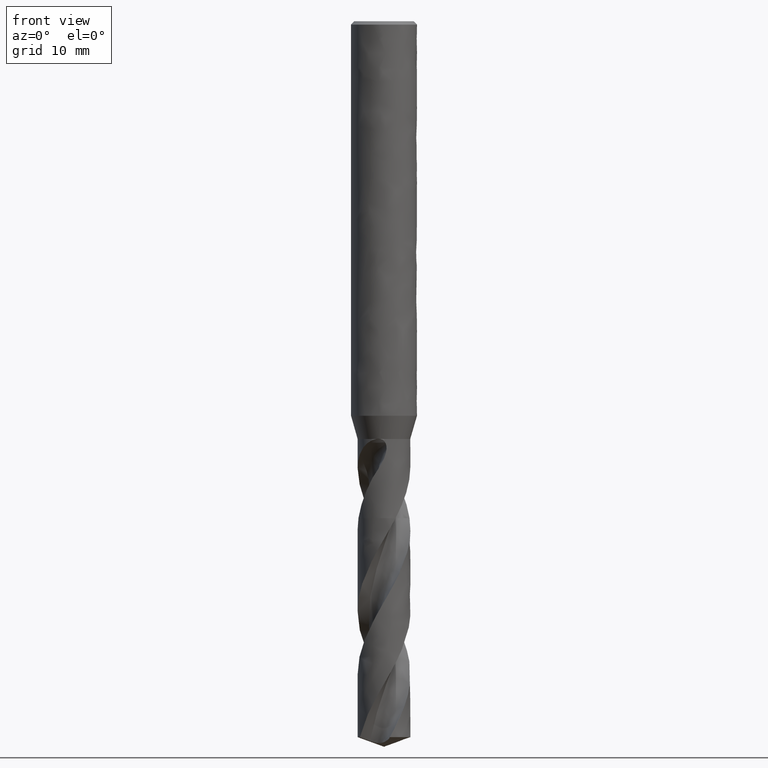
[diagram: clean part render]
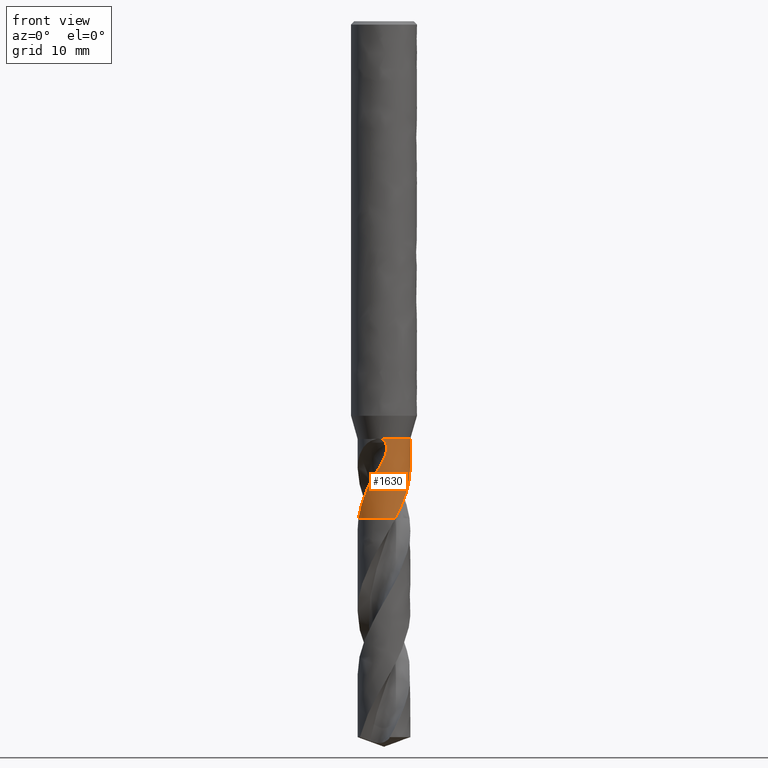
[diagram: same view with one face highlighted and labeled with its STEP entity id]
A machine part, front view. The second image highlights one B-rep face of the part: STEP entity #1630.
In plain terms, the highlighted face is a freeform B-spline surface patch.
Its self-contained STEP definition (entity closure, byte-faithful):
#189 = VERTEX_POINT('', #190);
#190 = CARTESIAN_POINT('', (-0.361819098276517, -2.3725696913099, -38.));
#203 = EDGE_CURVE('', #204, #189, #206, .T.);
#204 = VERTEX_POINT('', #205);
#205 = CARTESIAN_POINT('', (0.683818821939223, 2.30051990183994, -38.));
#206 = CIRCLE('', #207, 2.4);
#207 = AXIS2_PLACEMENT_3D('', #208, #209, #210);
#208 = CARTESIAN_POINT('', (1.42477179352876E-31, 2.32682891837997E-15, -38.));
#209 = DIRECTION('', (3.74939945665464E-33, 6.12323399573677E-17, -1.));
#210 = DIRECTION('', (-1., 6.12323399573677E-17, 0.));
#612 = VERTEX_POINT('', #613);
#613 = CARTESIAN_POINT('', (1.05004083517096, -2.15810431732886, -45.2));
#622 = VERTEX_POINT('', #623);
#623 = CARTESIAN_POINT('', (2.21043939012941, 0.934857049267073, -39.4110379832775));
#643 = EDGE_CURVE('', #622, #612, #644, .T.);
#644 = B_SPLINE_CURVE_WITH_KNOTS('', 3, (#645, #646, #647, #648, #649, #650, #651, #652, #653, #654, #655, #656, #657, #658, #659, #660, #661, #662, #663, #664, #665, #666, #667, #668, #669, #670, #671, #672, #673, #674, #675, #676, #677, #678, #679, #680, #681, #682, #683, #684, #685, #686, #687, #688, #689, #690, #691, #692, #693, #694, #695, #696, #697, #698, #699, #700, #701, #702, #703, #704, #705, #706, #707, #708, #709, #710, #711, #712, #713, #714, #715, #716, #717, #718, #719, #720, #721, #722, #723, #724, #725, #726, #727, #728, #729, #730, #731, #732, #733, #734, #735, #736, #737, #738, #739, #740, #741, #742, #743, #744, #745, #746, #747), .UNSPECIFIED., .F., .U., (4, 3, 3, 3, 3, 3, 3, 3, 3, 3, 3, 3, 3, 3, 3, 3, 3, 3, 3, 3, 3, 3, 3, 3, 3, 3, 3, 3, 3, 3, 3, 3, 3, 3, 4), (0., 0.196188848893899, 0.392404172464265, 0.588647711045399, 0.784928591714684, 0.981249295148756, 1.17761092496818, 1.37401911658387, 1.50511830685753, 1.56345266580327, 1.62184017376926, 1.81900205277714, 2.01619015199549, 2.1476214936762, 2.44362398514528, 2.64084218273653, 2.83807996489279, 3.03536503107888, 3.16683085867797, 3.29827151082379, 3.42966651761195, 3.56104697034798, 3.64863718683867, 3.73623770808357, 4.03197750756973, 4.22906356396195, 4.67242195934843, 4.96801131203175, 5.16505954708879, 5.3620951272825, 5.55913767560468, 5.7561707161978, 6.19932088821335, 6.64237188653488, 6.8524637557903), .UNSPECIFIED.);
#645 = CARTESIAN_POINT('', (2.21043939012941, 0.934857049267073, -39.4110379832775));
#646 = CARTESIAN_POINT('', (2.22687099684584, 0.896005044291993, -39.4610099537782));
#647 = CARTESIAN_POINT('', (2.24218241038625, 0.856945305760388, -39.5112016160299));
#648 = CARTESIAN_POINT('', (2.25638415075851, 0.817759478212151, -39.5615946246258));
#649 = CARTESIAN_POINT('', (2.27058780758262, 0.778568362737958, -39.6119944334992));
#650 = CARTESIAN_POINT('', (2.28368576280386, 0.739239221313795, -39.6626107507317));
#651 = CARTESIAN_POINT('', (2.29569232438249, 0.699854807636086, -39.7134294340291));
#652 = CARTESIAN_POINT('', (2.3077006124586, 0.660464730630784, -39.7642554248582));
#653 = CARTESIAN_POINT('', (2.31862019573842, 0.621009874094685, -39.8153000322074));
#654 = CARTESIAN_POINT('', (2.3284718204337, 0.581565973425345, -39.8665463265476));
#655 = CARTESIAN_POINT('', (2.33832531973969, 0.542114567196196, -39.9178023722594));
#656 = CARTESIAN_POINT('', (2.34711341685117, 0.50266237028228, -39.9692736035613));
#657 = CARTESIAN_POINT('', (2.35486091698371, 0.463281838261172, -40.0209440696272));
#658 = CARTESIAN_POINT('', (2.36260998898038, 0.42389331645696, -40.0726250189393));
#659 = CARTESIAN_POINT('', (2.36932005906851, 0.384565983662525, -40.1245188220013));
#660 = CARTESIAN_POINT('', (2.37501940777291, 0.34537343948547, -40.176613794828));
#661 = CARTESIAN_POINT('', (2.38071994460336, 0.306172724956854, -40.2287196277367));
#662 = CARTESIAN_POINT('', (2.38541064267189, 0.267098700881635, -40.281041123241));
#663 = CARTESIAN_POINT('', (2.38912481935493, 0.228216120250631, -40.3335631165186));
#664 = CARTESIAN_POINT('', (2.39283987675352, 0.189324319677833, -40.3860975639521));
#665 = CARTESIAN_POINT('', (2.39557888030163, 0.150614232789144, -40.4388448954101));
#666 = CARTESIAN_POINT('', (2.39737828093243, 0.112148910442572, -40.4917922570494));
#667 = CARTESIAN_POINT('', (2.39857935082537, 0.086473949679641, -40.5271337373661));
#668 = CARTESIAN_POINT('', (2.39936203510012, 0.0609047283117939, -40.5625689291013));
#669 = CARTESIAN_POINT('', (2.39973802084211, 0.0354602781265607, -40.5980950462483));
#670 = CARTESIAN_POINT('', (2.39990532078641, 0.024138425663673, -40.6139028728662));
#671 = CARTESIAN_POINT('', (2.39999211592167, 0.0128409187128994, -40.6297292197871));
#672 = CARTESIAN_POINT('', (2.39999948682777, 0.00156946693152678, -40.6455739045506));
#673 = CARTESIAN_POINT('', (2.40000686444957, -0.00971225438275616, -40.6614330255655));
#674 = CARTESIAN_POINT('', (2.39993467477779, -0.0209680424963481, -40.6773108597838));
#675 = CARTESIAN_POINT('', (2.39978402827497, -0.0321965469629973, -40.6932069914731));
#676 = CARTESIAN_POINT('', (2.39927532789373, -0.0701127574027787, -40.746884760948));
#677 = CARTESIAN_POINT('', (2.39787170152543, -0.107723169479581, -40.8007783419164));
#678 = CARTESIAN_POINT('', (2.39561714083306, -0.144977634645118, -40.8548729119517));
#679 = CARTESIAN_POINT('', (2.39336228031065, -0.182237054216253, -40.9089746759285));
#680 = CARTESIAN_POINT('', (2.39025572996123, -0.219148302018974, -40.9632885498081));
#681 = CARTESIAN_POINT('', (2.38634401819263, -0.25566037400582, -41.0178038386583));
#682 = CARTESIAN_POINT('', (2.38373675371748, -0.279996683487968, -41.0541397919135));
#683 = CARTESIAN_POINT('', (2.38077158182415, -0.304158239464549, -41.0905693400092));
#684 = CARTESIAN_POINT('', (2.37746317179673, -0.328129344543049, -41.1270905096322));
#685 = CARTESIAN_POINT('', (2.37001215137502, -0.382115758557905, -41.2093414937697));
#686 = CARTESIAN_POINT('', (2.36081682647196, -0.435151182319368, -41.2920822066402));
#687 = CARTESIAN_POINT('', (2.35005347028261, -0.487081807104978, -41.375284582616));
#688 = CARTESIAN_POINT('', (2.34288214649692, -0.521681732832545, -41.4307200032566));
#689 = CARTESIAN_POINT('', (2.33501348249164, -0.555799570781066, -41.4863726686955));
#690 = CARTESIAN_POINT('', (2.32650229990307, -0.58939549416884, -41.542234483108));
#691 = CARTESIAN_POINT('', (2.31799027211964, -0.622994753767744, -41.5981018448248));
#692 = CARTESIAN_POINT('', (2.30883415432313, -0.656078958829977, -41.6541868609506));
#693 = CARTESIAN_POINT('', (2.29908380391036, -0.688631732203782, -41.7104698475475));
#694 = CARTESIAN_POINT('', (2.2893311160354, -0.721192309489646, -41.7667663269266));
#695 = CARTESIAN_POINT('', (2.27898185164418, -0.753226837282214, -41.823269466839));
#696 = CARTESIAN_POINT('', (2.26809388693348, -0.784697470402531, -41.8799761787866));
#697 = CARTESIAN_POINT('', (2.26083841991191, -0.805668712211213, -41.9177641115519));
#698 = CARTESIAN_POINT('', (2.25334331088009, -0.826390847699561, -41.9556459786348));
#699 = CARTESIAN_POINT('', (2.24562955091383, -0.846845865587468, -41.9936256152544));
#700 = CARTESIAN_POINT('', (2.23791726811778, -0.867296966378769, -42.0315979788466));
#701 = CARTESIAN_POINT('', (2.22998716880845, -0.887479721772995, -42.069672196015));
#702 = CARTESIAN_POINT('', (2.22185151996281, -0.907400585870985, -42.1078375941883));
#703 = CARTESIAN_POINT('', (2.21371869638161, -0.9273145320562, -42.1459897386748));
#704 = CARTESIAN_POINT('', (2.20538029781214, -0.946967972005823, -42.1842353062663));
#705 = CARTESIAN_POINT('', (2.19683278929529, -0.966398311193199, -42.2225458298624));
#706 = CARTESIAN_POINT('', (2.1882862275487, -0.985826498166603, -42.2608521099687));
#707 = CARTESIAN_POINT('', (2.17953039784294, -1.00503283207384, -42.2992252153681));
#708 = CARTESIAN_POINT('', (2.17054177947983, -1.02408416818762, -42.3376194935167));
#709 = CARTESIAN_POINT('', (2.16454914502028, -1.03678552991907, -42.363216628136));
#710 = CARTESIAN_POINT('', (2.15845247084378, -1.0494189249229, -42.3888234242195));
#711 = CARTESIAN_POINT('', (2.15223928017776, -1.06201039583419, -42.4144222656065));
#712 = CARTESIAN_POINT('', (2.14602535854652, -1.07460334809829, -42.4400241186286));
#713 = CARTESIAN_POINT('', (2.13969200834749, -1.0871598533924, -42.4656152271627));
#714 = CARTESIAN_POINT('', (2.13323743991263, -1.09968087414258, -42.4911928097816));
#715 = CARTESIAN_POINT('', (2.11144678447397, -1.14195190305197, -42.5775428571048));
#716 = CARTESIAN_POINT('', (2.0882806218902, -1.18380056852381, -42.6637646490617));
#717 = CARTESIAN_POINT('', (2.06380250407947, -1.22503845823521, -42.7498939786935));
#718 = CARTESIAN_POINT('', (2.04748986805415, -1.25252009266952, -42.8072920358585));
#719 = CARTESIAN_POINT('', (2.03059375764564, -1.27973335567397, -42.8646563829438));
#720 = CARTESIAN_POINT('', (2.01313398993382, -1.3066336665543, -42.921992314763));
#721 = CARTESIAN_POINT('', (1.97385706320324, -1.36714773277301, -43.0509733659579));
#722 = CARTESIAN_POINT('', (1.93170421503758, -1.42611712080492, -43.1798462947866));
#723 = CARTESIAN_POINT('', (1.88674734403999, -1.48330187748757, -43.308491248455));
#724 = CARTESIAN_POINT('', (1.8567743638616, -1.52142725277553, -43.3942595094747));
#725 = CARTESIAN_POINT('', (1.82554155901597, -1.55877457665053, -43.4799463804504));
#726 = CARTESIAN_POINT('', (1.79311400904064, -1.59522479625355, -43.5655498492672));
#727 = CARTESIAN_POINT('', (1.77149688571785, -1.61952354509215, -43.6226155462958));
#728 = CARTESIAN_POINT('', (1.74934674426534, -1.64342633710728, -43.679651824003));
#729 = CARTESIAN_POINT('', (1.72668986250525, -1.66689595317812, -43.7366611725665));
#730 = CARTESIAN_POINT('', (1.70403443581906, -1.69036406197951, -43.7936668598664));
#731 = CARTESIAN_POINT('', (1.68087121018706, -1.71340040026534, -43.8506524152606));
#732 = CARTESIAN_POINT('', (1.65722221464884, -1.73597653534671, -43.9076147888804));
#733 = CARTESIAN_POINT('', (1.63357238276807, -1.75855346882911, -43.9645791769645));
#734 = CARTESIAN_POINT('', (1.60943366658826, -1.78067280618222, -44.0215258992743));
#735 = CARTESIAN_POINT('', (1.58484202640398, -1.80229735375263, -44.0784609865112));
#736 = CARTESIAN_POINT('', (1.56025157281952, -1.82392085789186, -44.1353933265071));
#737 = CARTESIAN_POINT('', (1.53520660029907, -1.84505081735411, -44.1923207425845));
#738 = CARTESIAN_POINT('', (1.50975707450765, -1.86564561907509, -44.2492569652834));
#739 = CARTESIAN_POINT('', (1.4525181378388, -1.91196571796715, -44.3773131370147));
#740 = CARTESIAN_POINT('', (1.39320205260106, -1.95560656621664, -44.5054545328732));
#741 = CARTESIAN_POINT('', (1.33202333715065, -1.9964252626347, -44.6335608533628));
#742 = CARTESIAN_POINT('', (1.27085831303917, -2.03723482413381, -44.761638504616));
#743 = CARTESIAN_POINT('', (1.20777862355172, -2.07525441419873, -44.8897353248389));
#744 = CARTESIAN_POINT('', (1.14310421171437, -2.110287364593, -45.017799285714));
#745 = CARTESIAN_POINT('', (1.11243603101422, -2.12689975924226, -45.0785263736259));
#746 = CARTESIAN_POINT('', (1.08139915812949, -2.14284670472666, -45.1392698673754));
#747 = CARTESIAN_POINT('', (1.05004083517096, -2.15810431732886, -45.2));
#949 = EDGE_CURVE('', #622, #204, #950, .T.);
#950 = B_SPLINE_CURVE_WITH_KNOTS('', 3, (#951, #952, #953, #954, #955, #956, #957, #958, #959, #960, #961, #962, #963, #964, #965, #966, #967, #968, #969, #970, #971, #972, #973, #974, #975, #976, #977, #978, #979, #980, #981, #982, #983, #984, #985, #986, #987, #988, #989, #990), .UNSPECIFIED., .F., .U., (4, 3, 3, 3, 3, 3, 3, 3, 3, 3, 3, 3, 3, 4), (0., 0.300034875930132, 0.600416651844006, 0.901058333832499, 1.10038650842259, 1.29972937169209, 1.49906351190108, 1.69835848473209, 1.89757257686506, 2.09664586603291, 2.22877848242182, 2.36080243831027, 2.49267799193145, 2.59134608421565), .UNSPECIFIED.);
#951 = CARTESIAN_POINT('', (2.21043939012941, 0.934857049267074, -39.4110379832775));
#952 = CARTESIAN_POINT('', (2.18531026015952, 0.994274067910367, -39.3346150160513));
#953 = CARTESIAN_POINT('', (2.15694933275048, 1.05464355446592, -39.2598903954277));
#954 = CARTESIAN_POINT('', (2.12507686457928, 1.1153691405225, -39.1870970291921));
#955 = CARTESIAN_POINT('', (2.09316754549648, 1.17616493743291, -39.1142194993488));
#956 = CARTESIAN_POINT('', (2.05768750327707, 1.23741282409139, -39.043154974023));
#957 = CARTESIAN_POINT('', (2.01841815705473, 1.29845606135587, -38.974183171423));
#958 = CARTESIAN_POINT('', (1.97911483293343, 1.35955211643239, -38.9051516908002));
#959 = CARTESIAN_POINT('', (1.93593843804024, 1.42056106754574, -38.8380890893167));
#960 = CARTESIAN_POINT('', (1.88874270250012, 1.48076027896232, -38.7733477420839));
#961 = CARTESIAN_POINT('', (1.85745149979188, 1.52067290466366, -38.7304236389486));
#962 = CARTESIAN_POINT('', (1.82435929734411, 1.56027512757759, -38.6884679329987));
#963 = CARTESIAN_POINT('', (1.7894431420555, 1.59934150241608, -38.6476106674991));
#964 = CARTESIAN_POINT('', (1.75452441376279, 1.63841075609224, -38.6067503911894));
#965 = CARTESIAN_POINT('', (1.71774294713345, 1.6769870029847, -38.5669434398971));
#966 = CARTESIAN_POINT('', (1.67909151706439, 1.71483284238506, -38.528355284432));
#967 = CARTESIAN_POINT('', (1.64044177834639, 1.75267702568627, -38.4897688175492));
#968 = CARTESIAN_POINT('', (1.59987333744748, 1.7898384576397, -38.4523518555096));
#969 = CARTESIAN_POINT('', (1.55739853398485, 1.82606402032948, -38.416317155319));
#970 = CARTESIAN_POINT('', (1.51493207644169, 1.86228246501978, -38.3802895356251));
#971 = CARTESIAN_POINT('', (1.47049720125285, 1.89761849034424, -38.3455897410543));
#972 = CARTESIAN_POINT('', (1.42413267909928, 1.93179867282321, -38.3124957635957));
#973 = CARTESIAN_POINT('', (1.37778697325032, 1.96596498381822, -38.2794152168019));
#974 = CARTESIAN_POINT('', (1.3294311023876, 1.99903606961915, -38.2478795936537));
#975 = CARTESIAN_POINT('', (1.27914317599989, 2.03071237138422, -38.2182600021654));
#976 = CARTESIAN_POINT('', (1.22889079272597, 2.06236628458648, -38.1886613455732));
#977 = CARTESIAN_POINT('', (1.17659895274017, 2.09269521777943, -38.1609095812509));
#978 = CARTESIAN_POINT('', (1.1224108249792, 2.12136605515633, -38.1355130733875));
#979 = CARTESIAN_POINT('', (1.08644407560663, 2.14039599519754, -38.1186564320713));
#980 = CARTESIAN_POINT('', (1.04959098807987, 2.15872291834561, -38.1028149386091));
#981 = CARTESIAN_POINT('', (1.0119205448225, 2.17623914379053, -38.0881858037809));
#982 = CARTESIAN_POINT('', (0.974281080208611, 2.19374096460264, -38.0735686993595));
#983 = CARTESIAN_POINT('', (0.935769831240244, 2.21045872194485, -38.0601399901116));
#984 = CARTESIAN_POINT('', (0.896491741546476, 2.22627548999197, -38.0481498154515));
#985 = CARTESIAN_POINT('', (0.857257802609483, 2.24207447911235, -38.0361731184145));
#986 = CARTESIAN_POINT('', (0.817185883446195, 2.25700278642914, -38.0256092892364));
#987 = CARTESIAN_POINT('', (0.776439536356186, 2.27093409115787, -38.0167772316601));
#988 = CARTESIAN_POINT('', (0.745953489287374, 2.28135736691193, -38.0101691663435));
#989 = CARTESIAN_POINT('', (0.715045541253746, 2.29123790501931, -38.0045218145063));
#990 = CARTESIAN_POINT('', (0.683818821939223, 2.30051990183994, -38.));
#1140 = EDGE_CURVE('', #1141, #1143, #1145, .T.);
#1141 = VERTEX_POINT('', #1142);
#1142 = CARTESIAN_POINT('', (-1.05893610055525, -2.15375354554342, -41.5712549142741));
#1143 = VERTEX_POINT('', #1144);
#1144 = CARTESIAN_POINT('', (-1.58639422574271, -1.80093124814086, -42.6856059413571));
#1145 = B_SPLINE_CURVE_WITH_KNOTS('', 3, (#1146, #1147, #1148, #1149, #1150, #1151, #1152, #1153, #1154, #1155, #1156, #1157, #1158, #1159, #1160, #1161, #1162, #1163, #1164, #1165, #1166, #1167, #1168, #1169, #1170, #1171, #1172, #1173), .UNSPECIFIED., .F., .U., (4, 3, 3, 3, 3, 3, 3, 3, 3, 4), (0., 0.197180605487279, 0.394417820685763, 0.482026341959621, 0.569629728559472, 0.701019960894416, 0.832380305207946, 0.963743324931897, 1.02213363389745, 1.28381718687627), .UNSPECIFIED.);
#1146 = CARTESIAN_POINT('', (-1.05893610055525, -2.15375354554342, -41.5712549142741));
#1147 = CARTESIAN_POINT('', (-1.09123656182335, -2.13787237632972, -41.6262502768835));
#1148 = CARTESIAN_POINT('', (-1.12267915922007, -2.12151008626156, -41.6816202580947));
#1149 = CARTESIAN_POINT('', (-1.15322983172248, -2.10477099828588, -41.7373560687164));
#1150 = CARTESIAN_POINT('', (-1.18378927519273, -2.0880271045894, -41.7931078808516));
#1151 = CARTESIAN_POINT('', (-1.21346448414229, -2.070901217128, -41.8492394553678));
#1152 = CARTESIAN_POINT('', (-1.24220031240515, -2.05351853750107, -41.9057602191695));
#1153 = CARTESIAN_POINT('', (-1.2549641481709, -2.04579752574191, -41.9308655246412));
#1154 = CARTESIAN_POINT('', (-1.26754337569636, -2.03802557592737, -41.956049908123));
#1155 = CARTESIAN_POINT('', (-1.27993138312952, -2.03021566698717, -41.9813154673499));
#1156 = CARTESIAN_POINT('', (-1.29231866451025, -2.02240621578025, -42.0065795457801));
#1157 = CARTESIAN_POINT('', (-1.30451338885283, -2.01455981051171, -42.031927403533));
#1158 = CARTESIAN_POINT('', (-1.31652590249776, -2.00667873563569, -42.0573497185695));
#1159 = CARTESIAN_POINT('', (-1.33454263700992, -1.99485845905506, -42.0954788823927));
#1160 = CARTESIAN_POINT('', (-1.35214997492964, -1.98296045799177, -42.1337792677216));
#1161 = CARTESIAN_POINT('', (-1.3694102663713, -1.97096816878329, -42.1722035066037));
#1162 = CARTESIAN_POINT('', (-1.38666663152445, -1.95897860752337, -42.2106190049238));
#1163 = CARTESIAN_POINT('', (-1.40357765728311, -1.94689412578283, -42.2491610997339));
#1164 = CARTESIAN_POINT('', (-1.42023466819164, -1.93466624699626, -42.2877655709343));
#1165 = CARTESIAN_POINT('', (-1.43689201835278, -1.92243811916502, -42.3263708283902));
#1166 = CARTESIAN_POINT('', (-1.45329672455441, -1.91006594647588, -42.3650402696397));
#1167 = CARTESIAN_POINT('', (-1.46956277022748, -1.89746811945849, -42.4036934821904));
#1168 = CARTESIAN_POINT('', (-1.47679295901648, -1.89186843841137, -42.4208746723617));
#1169 = CARTESIAN_POINT('', (-1.48399721864938, -1.88622277120812, -42.4380518766117));
#1170 = CARTESIAN_POINT('', (-1.49118233597324, -1.88052525664543, -42.4552198051502));
#1171 = CARTESIAN_POINT('', (-1.52338334780532, -1.85499112469226, -42.5321600477495));
#1172 = CARTESIAN_POINT('', (-1.5551646042182, -1.82844062214375, -42.6089466753141));
#1173 = CARTESIAN_POINT('', (-1.58639422574271, -1.80093124814086, -42.6856059413571));
#1203 = VERTEX_POINT('', #1204);
#1204 = CARTESIAN_POINT('', (-2.32390896804312, -0.599539079834466, -45.2));
#1211 = EDGE_CURVE('', #1143, #1203, #1212, .T.);
#1212 = B_SPLINE_CURVE_WITH_KNOTS('', 3, (#1213, #1214, #1215, #1216, #1217, #1218, #1219, #1220, #1221, #1222, #1223, #1224, #1225, #1226, #1227, #1228, #1229, #1230, #1231, #1232, #1233, #1234, #1235, #1236, #1237, #1238, #1239, #1240, #1241, #1242, #1243, #1244, #1245, #1246), .UNSPECIFIED., .F., .U., (4, 3, 3, 3, 3, 3, 3, 3, 3, 3, 3, 4), (0., 0.295575570047041, 0.591087089939314, 0.788110936926751, 1.08358797219827, 1.28058067937281, 1.47757059999072, 1.67456165283766, 1.80589679444679, 2.24879016474709, 2.69158239634136, 2.89293345949753), .UNSPECIFIED.);
#1213 = CARTESIAN_POINT('', (-1.58639422574271, -1.80093124814086, -42.6856059413571));
#1214 = CARTESIAN_POINT('', (-1.62166856025622, -1.76985899002611, -42.7721937532471));
#1215 = CARTESIAN_POINT('', (-1.65627592286327, -1.73753042010344, -42.8586143407786));
#1216 = CARTESIAN_POINT('', (-1.69004386309082, -1.70403982959036, -42.9449006063572));
#1217 = CARTESIAN_POINT('', (-1.72380448592812, -1.67055649636687, -43.0311681740148));
#1218 = CARTESIAN_POINT('', (-1.75674497877851, -1.63589570982833, -43.1173122035107));
#1219 = CARTESIAN_POINT('', (-1.78877245390861, -1.60009159367177, -43.2033082068522));
#1220 = CARTESIAN_POINT('', (-1.81012585617776, -1.57622022410309, -43.2606435804784));
#1221 = CARTESIAN_POINT('', (-1.83107722311138, -1.5518365171126, -43.3179192103609));
#1222 = CARTESIAN_POINT('', (-1.8515987008986, -1.52695194778049, -43.3751274466648));
#1223 = CARTESIAN_POINT('', (-1.88237479987685, -1.48963251217568, -43.4609227466482));
#1224 = CARTESIAN_POINT('', (-1.91218451435586, -1.45118339109634, -43.5465864992746));
#1225 = CARTESIAN_POINT('', (-1.9408977245274, -1.4117067765387, -43.6321311689282));
#1226 = CARTESIAN_POINT('', (-1.96004064369933, -1.38538796240599, -43.6891632697272));
#1227 = CARTESIAN_POINT('', (-1.97869869793835, -1.35860972679663, -43.7461500657368));
#1228 = CARTESIAN_POINT('', (-1.99683604485051, -1.33140745453291, -43.8030962235001));
#1229 = CARTESIAN_POINT('', (-2.01497313520116, -1.30420556705842, -43.8600415757327));
#1230 = CARTESIAN_POINT('', (-2.03259257784445, -1.27657495460119, -43.9169509950216));
#1231 = CARTESIAN_POINT('', (-2.04965907933952, -1.24855823191435, -43.9738321663005));
#1232 = CARTESIAN_POINT('', (-2.06672567892685, -1.2205413481972, -44.0307136645124));
#1233 = CARTESIAN_POINT('', (-2.08324089103552, -1.19213530325629, -44.0875729100759));
#1234 = CARTESIAN_POINT('', (-2.09916546472525, -1.16340205935214, -44.1444282359573));
#1235 = CARTESIAN_POINT('', (-2.10978247555077, -1.14424542963468, -44.1823340299918));
#1236 = CARTESIAN_POINT('', (-2.1201367690793, -1.12494407510625, -44.2202414526322));
#1237 = CARTESIAN_POINT('', (-2.1302191535127, -1.10551633095474, -44.2581552348717));
#1238 = CARTESIAN_POINT('', (-2.16421935458351, -1.0400013516493, -44.3860095364027));
#1239 = CARTESIAN_POINT('', (-2.19515043428527, -0.973009121622303, -44.5139680167444));
#1240 = CARTESIAN_POINT('', (-2.2229348496767, -0.904743418927594, -44.6418850551058));
#1241 = CARTESIAN_POINT('', (-2.25071292024564, -0.836493305323395, -44.7697728824549));
#1242 = CARTESIAN_POINT('', (-2.27536422351615, -0.766910780185838, -44.8976738297598));
#1243 = CARTESIAN_POINT('', (-2.29675389312119, -0.696363090946335, -45.0255429080107));
#1244 = CARTESIAN_POINT('', (-2.30648042490795, -0.664282916051575, -45.0836888577667));
#1245 = CARTESIAN_POINT('', (-2.31553634074983, -0.631992716815598, -45.1418505797638));
#1246 = CARTESIAN_POINT('', (-2.32390896804312, -0.599539079834466, -45.2));
#1249 = EDGE_CURVE('', #1141, #189, #1250, .T.);
#1250 = B_SPLINE_CURVE_WITH_KNOTS('', 3, (#1251, #1252, #1253, #1254, #1255, #1256, #1257, #1258, #1259, #1260, #1261, #1262, #1263, #1264, #1265, #1266, #1267, #1268, #1269, #1270, #1271, #1272, #1273, #1274, #1275, #1276, #1277, #1278, #1279, #1280, #1281, #1282, #1283, #1284, #1285, #1286, #1287, #1288, #1289, #1290, #1291, #1292, #1293, #1294, #1295, #1296, #1297, #1298, #1299, #1300, #1301, #1302, #1303, #1304, #1305, #1306, #1307, #1308, #1309, #1310, #1311, #1312, #1313, #1314, #1315, #1316, #1317, #1318, #1319, #1320, #1321, #1322, #1323, #1324, #1325, #1326, #1327, #1328, #1329, #1330, #1331, #1332, #1333, #1334, #1335, #1336, #1337, #1338, #1339, #1340, #1341, #1342, #1343, #1344, #1345, #1346, #1347), .UNSPECIFIED., .F., .U., (4, 3, 3, 3, 3, 3, 3, 3, 3, 3, 3, 3, 3, 3, 3, 3, 3, 3, 3, 3, 3, 3, 3, 3, 3, 3, 3, 3, 3, 3, 3, 3, 4), (0., 0.196946832912996, 0.393791545110923, 0.590513012398482, 0.787099272613416, 0.98355341104043, 1.17987931068473, 1.37607437390991, 1.57214983849418, 1.76812399288763, 1.96401705814368, 2.09485200203426, 2.29091223472534, 2.48694080779572, 2.68303425229534, 2.81403988239499, 2.94514497667884, 3.07640324179894, 3.20788660797514, 3.2956259169986, 3.32159517529209, 3.45387547721645, 3.54206941673906, 3.63045173569772, 3.71900714224583, 3.77784508569041, 3.80387813213901, 3.82992746508146, 3.91887559843983, 4.00778630760049, 4.09655354760344, 4.18511254958422, 4.21518939425536), .UNSPECIFIED.);
#1251 = CARTESIAN_POINT('', (-1.05893610055525, -2.15375354554341, -41.5712549142741));
#1252 = CARTESIAN_POINT('', (-1.02667393393566, -2.16961588642559, -41.5163247528414));
#1253 = CARTESIAN_POINT('', (-0.993673320249397, -2.18493842954051, -41.4616651508475));
#1254 = CARTESIAN_POINT('', (-0.960091330111548, -2.19959647159306, -41.4071933633806));
#1255 = CARTESIAN_POINT('', (-0.926526752880501, -2.2142469131693, -41.3527498205816));
#1256 = CARTESIAN_POINT('', (-0.892375471281588, -2.22823594200007, -41.2984832123792));
#1257 = CARTESIAN_POINT('', (-0.857814606759703, -2.24146249141708, -41.2442990756821));
#1258 = CARTESIAN_POINT('', (-0.823275380871655, -2.25468075966221, -41.1901488637931));
#1259 = CARTESIAN_POINT('', (-0.788321033013211, -2.26713968681789, -41.1360713709118));
#1260 = CARTESIAN_POINT('', (-0.75314633607358, -2.2787651472802, -41.0819648504894));
#1261 = CARTESIAN_POINT('', (-0.717995814776136, -2.2903826175394, -41.0278955175908));
#1262 = CARTESIAN_POINT('', (-0.682621381222388, -2.30116902415287, -40.9737860906614));
#1263 = CARTESIAN_POINT('', (-0.64722948210037, -2.31108069904538, -40.9195349183223));
#1264 = CARTESIAN_POINT('', (-0.611861369182864, -2.32098571249468, -40.865320207137));
#1265 = CARTESIAN_POINT('', (-0.57646920535576, -2.33001921527072, -40.8109540954709));
#1266 = CARTESIAN_POINT('', (-0.541257715743599, -2.33817024297824, -40.7563467758308));
#1267 = CARTESIAN_POINT('', (-0.506069211030618, -2.34631594996368, -40.701775102048));
#1268 = CARTESIAN_POINT('', (-0.471052520101221, -2.3535823848232, -40.6469523892992));
#1269 = CARTESIAN_POINT('', (-0.436418727342702, -2.35998701149492, -40.5917968624497));
#1270 = CARTESIAN_POINT('', (-0.401808015397431, -2.36638736996554, -40.536678092603));
#1271 = CARTESIAN_POINT('', (-0.367573777115185, -2.37192815896074, -40.4812124034281));
#1272 = CARTESIAN_POINT('', (-0.333938415767946, -2.37665418908059, -40.4253261630315));
#1273 = CARTESIAN_POINT('', (-0.300323558216455, -2.38137733825753, -40.3694739903544));
#1274 = CARTESIAN_POINT('', (-0.267296926521368, -2.38528821306156, -40.3131862076426));
#1275 = CARTESIAN_POINT('', (-0.235087367680729, -2.38845848395087, -40.2564039420935));
#1276 = CARTESIAN_POINT('', (-0.202894451190317, -2.39162711679358, -40.1996510153614));
#1277 = CARTESIAN_POINT('', (-0.171505682845687, -2.39405708066064, -40.1423847635846));
#1278 = CARTESIAN_POINT('', (-0.141169079111784, -2.3958445882617, -40.084559041891));
#1279 = CARTESIAN_POINT('', (-0.110845027895514, -2.39763135623743, -40.0267572470152));
#1280 = CARTESIAN_POINT('', (-0.0815588913289794, -2.39877711453983, -39.9683711599756));
#1281 = CARTESIAN_POINT('', (-0.0535748321100232, -2.39940195410531, -39.9093771762317));
#1282 = CARTESIAN_POINT('', (-0.0348845695784875, -2.39981927796199, -39.8699757071551));
#1283 = CARTESIAN_POINT('', (-0.016769763517692, -2.40000487291692, -39.8302918196931));
#1284 = CARTESIAN_POINT('', (0.000683458780289004, -2.3999999026842, -39.790324822748));
#1285 = CARTESIAN_POINT('', (0.0268376552296194, -2.3999924546359, -39.7304330347592));
#1286 = CARTESIAN_POINT('', (0.0515237720634954, -2.39955609434882, -39.6698693165027));
#1287 = CARTESIAN_POINT('', (0.074407067527671, -2.39884630360136, -39.6086572318979));
#1288 = CARTESIAN_POINT('', (0.0972866678189664, -2.39813662747025, -39.5474550317625));
#1289 = CARTESIAN_POINT('', (0.118386401829876, -2.3971532832078, -39.4855490922652));
#1290 = CARTESIAN_POINT('', (0.137308019006036, -2.39606896977458, -39.4230152156948));
#1291 = CARTESIAN_POINT('', (0.156235897883387, -2.39498429751121, -39.3604606448863));
#1292 = CARTESIAN_POINT('', (0.173010632014564, -2.3937977548555, -39.2971980401436));
#1293 = CARTESIAN_POINT('', (0.18712275079572, -2.39269410417099, -39.2333846755526));
#1294 = CARTESIAN_POINT('', (0.196550740689436, -2.39195677991366, -39.1907523985872));
#1295 = CARTESIAN_POINT('', (0.204797355250903, -2.39125608823872, -39.1478357630219));
#1296 = CARTESIAN_POINT('', (0.211672361388556, -2.3906473624155, -39.1047160990247));
#1297 = CARTESIAN_POINT('', (0.218552587278034, -2.39003817442575, -39.0615636970283));
#1298 = CARTESIAN_POINT('', (0.224066870387658, -2.38952076725789, -39.0181624112663));
#1299 = CARTESIAN_POINT('', (0.227980955572822, -2.38914727128658, -38.9746379485554));
#1300 = CARTESIAN_POINT('', (0.231899613606236, -2.38877333895777, -38.9310626359641));
#1301 = CARTESIAN_POINT('', (0.234220243871282, -2.3885437120044, -38.8873014452417));
#1302 = CARTESIAN_POINT('', (0.234650370904416, -2.38850145560651, -38.8435508249178));
#1303 = CARTESIAN_POINT('', (0.235081235582904, -2.38845912674111, -38.7997251745694));
#1304 = CARTESIAN_POINT('', (0.233615203506779, -2.38860584487083, -38.7558225894935));
#1305 = CARTESIAN_POINT('', (0.229898013886699, -2.38896356255405, -38.7121541843939));
#1306 = CARTESIAN_POINT('', (0.227417520283136, -2.38920226881222, -38.6830141053023));
#1307 = CARTESIAN_POINT('', (0.223930007429248, -2.38953485248193, -38.6539381438819));
#1308 = CARTESIAN_POINT('', (0.219316955071425, -2.38995817394744, -38.6250609108853));
#1309 = CARTESIAN_POINT('', (0.217951574496458, -2.39008346949172, -38.6165137690074));
#1310 = CARTESIAN_POINT('', (0.216487215702268, -2.39021667621408, -38.6079819189066));
#1311 = CARTESIAN_POINT('', (0.214920698468037, -2.3903575241729, -38.5994695876763));
#1312 = CARTESIAN_POINT('', (0.206941287952271, -2.39107496516826, -38.5561100996036));
#1313 = CARTESIAN_POINT('', (0.196282290154609, -2.39199987820295, -38.5131255215003));
#1314 = CARTESIAN_POINT('', (0.182532569419906, -2.39304865414412, -38.4712438289792));
#1315 = CARTESIAN_POINT('', (0.173365353883744, -2.39374789417141, -38.4433204616783));
#1316 = CARTESIAN_POINT('', (0.162797342104439, -2.39450266718168, -38.4158101115942));
#1317 = CARTESIAN_POINT('', (0.150738245732349, -2.39526156844582, -38.3890100466263));
#1318 = CARTESIAN_POINT('', (0.138653391515831, -2.39602209069881, -38.3621527375762));
#1319 = CARTESIAN_POINT('', (0.12502945167284, -2.39678926616595, -38.3359250344842));
#1320 = CARTESIAN_POINT('', (0.109841758823749, -2.39748509651645, -38.3106903965635));
#1321 = CARTESIAN_POINT('', (0.0946243224560947, -2.3981822895784, -38.2854063392261));
#1322 = CARTESIAN_POINT('', (0.077773610627423, -2.39881010698536, -38.2610230762038));
#1323 = CARTESIAN_POINT('', (0.0593764207052367, -2.39926539604609, -38.2379432989508));
#1324 = CARTESIAN_POINT('', (0.0471529680401212, -2.39956789899934, -38.2226086437145));
#1325 = CARTESIAN_POINT('', (0.0342192021978679, -2.39979448776234, -38.2078108712751));
#1326 = CARTESIAN_POINT('', (0.0206352539634652, -2.39991128717203, -38.193664540918));
#1327 = CARTESIAN_POINT('', (0.0146249902690059, -2.39996296546463, -38.1874054493573));
#1328 = CARTESIAN_POINT('', (0.00848373677302916, -2.39999318325681, -38.1812692968012));
#1329 = CARTESIAN_POINT('', (0.0022184805737571, -2.39999897465477, -38.1752652399472));
#1330 = CARTESIAN_POINT('', (-0.00405069522273754, -2.40000476967588, -38.1692574269046));
#1331 = CARTESIAN_POINT('', (-0.0104468034661897, -2.39998610658436, -38.1633792227454));
#1332 = CARTESIAN_POINT('', (-0.0169618153971152, -2.3999400610887, -38.1576391081422));
#1333 = CARTESIAN_POINT('', (-0.0392079954180593, -2.39978283399585, -38.1380388949489));
#1334 = CARTESIAN_POINT('', (-0.0629270471773278, -2.39930321909712, -38.1199965992582));
#1335 = CARTESIAN_POINT('', (-0.0877247842517328, -2.39839620626534, -38.1037689941726));
#1336 = CARTESIAN_POINT('', (-0.112512087881614, -2.39748957505177, -38.0875482167187));
#1337 = CARTESIAN_POINT('', (-0.138498952408052, -2.39615030138712, -38.0730577799165));
#1338 = CARTESIAN_POINT('', (-0.165235112027062, -2.39430519310997, -38.0604039517654));
#1339 = CARTESIAN_POINT('', (-0.19192812932568, -2.39246306215843, -38.0477705422352));
#1340 = CARTESIAN_POINT('', (-0.219487623793184, -2.39010824432018, -38.0369060150515));
#1341 = CARTESIAN_POINT('', (-0.247484273345506, -2.38720580060594, -38.0277803868739));
#1342 = CARTESIAN_POINT('', (-0.275415245887597, -2.3843101657002, -38.0186761664));
#1343 = CARTESIAN_POINT('', (-0.303889252927792, -2.38085879618981, -38.0112627065701));
#1344 = CARTESIAN_POINT('', (-0.332546020135475, -2.37684941561136, -38.0054210184858));
#1345 = CARTESIAN_POINT('', (-0.342278572634989, -2.37548773002109, -38.0034370355908));
#1346 = CARTESIAN_POINT('', (-0.352040266034241, -2.3740609723783, -38.0016320155277));
#1347 = CARTESIAN_POINT('', (-0.361819098276523, -2.3725696913099, -38.));
#1630 = ADVANCED_FACE('', (#1631), #1646, .T.);
#1631 = FACE_OUTER_BOUND('', #1632, .T.);
#1632 = EDGE_LOOP('', (#1633, #1640, #1641, #1642, #1643, #1644, #1645));
#1633 = ORIENTED_EDGE('', *, *, #1634, .F.);
#1634 = EDGE_CURVE('', #612, #1203, #1635, .T.);
#1635 = CIRCLE('', #1636, 2.4);
#1636 = AXIS2_PLACEMENT_3D('', #1637, #1638, #1639);
#1637 = CARTESIAN_POINT('', (1.6947285544079E-31, 2.76770176607302E-15, -45.2));
#1638 = DIRECTION('', (3.74939945665464E-33, 6.12323399573677E-17, -1.));
#1639 = DIRECTION('', (-1., 6.12323399573677E-17, 0.));
#1640 = ORIENTED_EDGE('', *, *, #643, .F.);
#1641 = ORIENTED_EDGE('', *, *, #949, .T.);
#1642 = ORIENTED_EDGE('', *, *, #203, .T.);
#1643 = ORIENTED_EDGE('', *, *, #1249, .F.);
#1644 = ORIENTED_EDGE('', *, *, #1140, .T.);
#1645 = ORIENTED_EDGE('', *, *, #1211, .T.);
#1646 = (
   BOUNDED_SURFACE ()
   B_SPLINE_SURFACE (2, 1, ((#1647, #1648), (#1649, #1650), (#1651, #1652), (#1653, #1654), (#1655, #1656), (#1657, #1658), (#1659, #1660), (#1661, #1662), (#1663, #1664)), .UNSPECIFIED., .T., .F., .U.)
   B_SPLINE_SURFACE_WITH_KNOTS ((3, 2, 2, 2, 3), (2, 2), (0., 3.76991118430775, 7.53982236861551, 11.3097335529233, 15.079644737231), (0., 0.265423389714348), .UNSPECIFIED.)
   GEOMETRIC_REPRESENTATION_ITEM ()
   RATIONAL_B_SPLINE_SURFACE (((1., 1.), (0.707106781186548, 0.707106781186548), (1., 1.), (0.707106781186548, 0.707106781186548), (1., 1.), (0.707106781186548, 0.707106781186548), (1., 1.), (0.707106781186548, 0.707106781186548), (1., 1.)))
   REPRESENTATION_ITEM ('')
   SURFACE ()
);
#1647 = CARTESIAN_POINT('', (-2.4, 2.47378653427765E-15, -38.));
#1648 = CARTESIAN_POINT('', (-2.4, 2.9146593819707E-15, -45.2));
#1649 = CARTESIAN_POINT('', (-2.4, 2.4, -38.));
#1650 = CARTESIAN_POINT('', (-2.4, 2.4, -45.2));
#1651 = CARTESIAN_POINT('', (1.23259516440783E-31, 2.4, -38.));
#1652 = CARTESIAN_POINT('', (1.4791141972894E-31, 2.4, -45.2));
#1653 = CARTESIAN_POINT('', (2.4, 2.4, -38.));
#1654 = CARTESIAN_POINT('', (2.4, 2.4, -45.2));
#1655 = CARTESIAN_POINT('', (2.4, 2.47378653427765E-15, -38.));
#1656 = CARTESIAN_POINT('', (2.4, 2.9146593819707E-15, -45.2));
#1657 = CARTESIAN_POINT('', (2.4, -2.4, -38.));
#1658 = CARTESIAN_POINT('', (2.4, -2.4, -45.2));
#1659 = CARTESIAN_POINT('', (2.93915231795365E-16, -2.4, -38.));
#1660 = CARTESIAN_POINT('', (2.93915231795365E-16, -2.4, -45.2));
#1661 = CARTESIAN_POINT('', (-2.4, -2.4, -38.));
#1662 = CARTESIAN_POINT('', (-2.4, -2.4, -45.2));
#1663 = CARTESIAN_POINT('', (-2.4, 2.47378653427765E-15, -38.));
#1664 = CARTESIAN_POINT('', (-2.4, 2.9146593819707E-15, -45.2));